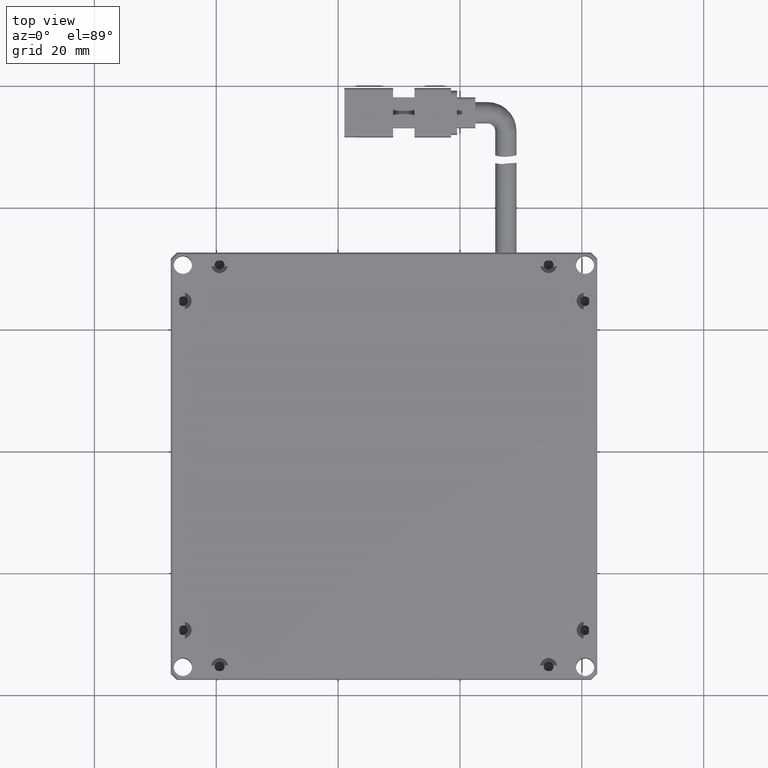
[diagram: clean part render]
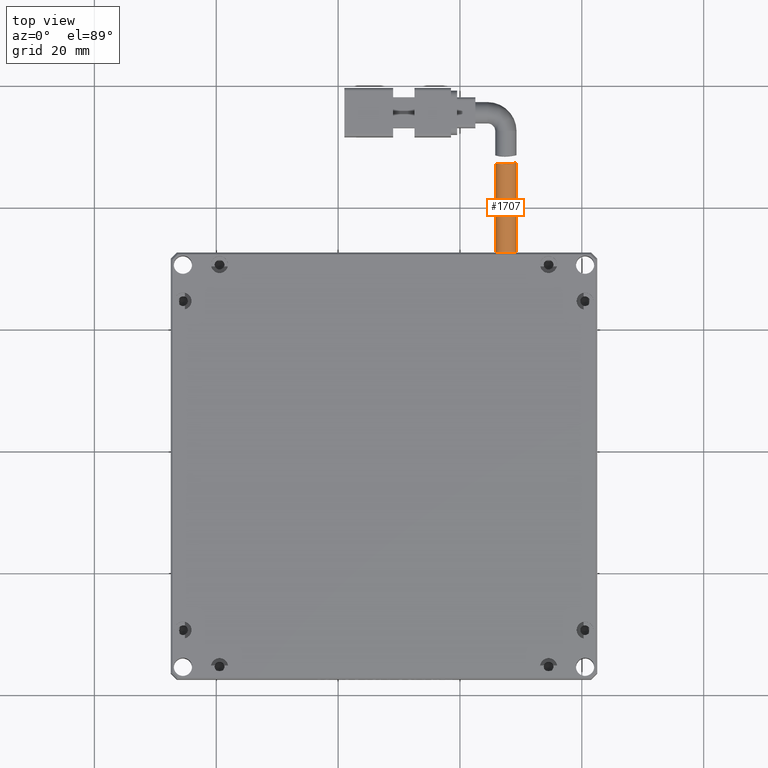
[diagram: same view with one face highlighted and labeled with its STEP entity id]
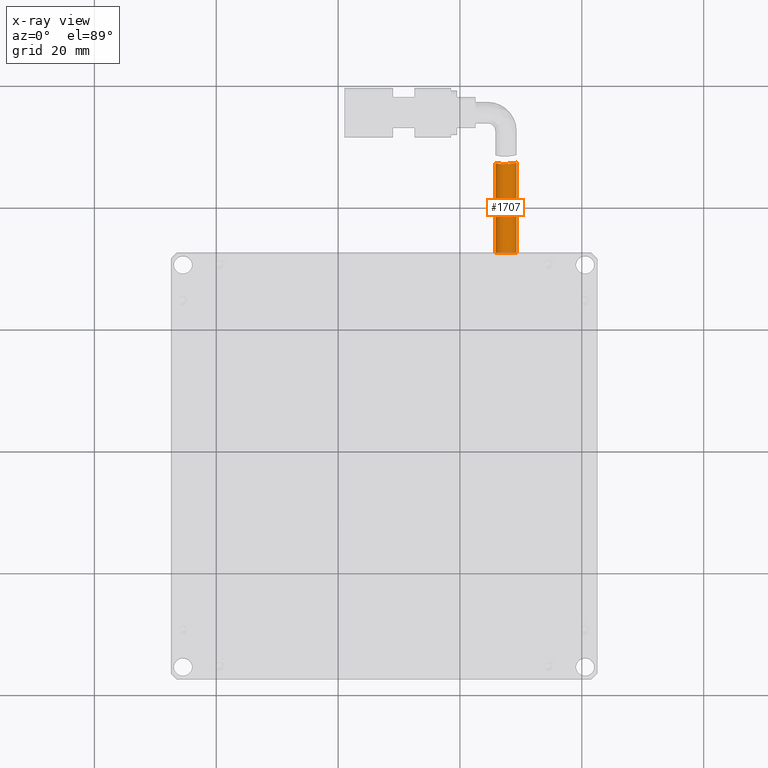
[diagram: x-ray of the same camera — body ghosted, the highlighted face saturated]
A machine part, top view. The second image highlights one B-rep face of the part: STEP entity #1707.
The next image is the same camera in x-ray: the body ghosted, the highlighted face saturated — about 0% of this face is hidden behind the body in this view.
In plain terms, the highlighted cylindrical surface (edge-blend (fillet) strip) has radius 1.75 mm, axis along (0, -1, 0).
Its self-contained STEP definition (entity closure, byte-faithful):
#109 = CARTESIAN_POINT ( 'NONE',  ( 9.227533800888309700, 87.30549672430603900, 2.454400641859419500 ) ) ;
#160 = CARTESIAN_POINT ( 'NONE',  ( 6.970444231491749900, 87.08728371330994400, 3.660870664720755400 ) ) ;
#255 = EDGE_CURVE ( 'NONE', #11679, #11980, #3483, .T. ) ;
#522 = ORIENTED_EDGE ( 'NONE', *, *, #255, .T. ) ;
#1529 = CARTESIAN_POINT ( 'NONE',  ( 9.105568568188719100, 87.28170708176979500, 2.777736136175874100 ) ) ;
#1587 = CARTESIAN_POINT ( 'NONE',  ( 6.458566352028462600, 87.13174397815304000, 3.399748863431741000 ) ) ;
#1707 = ADVANCED_FACE ( 'NONE', ( #6212 ), #12284, .T. ) ;
#2960 = VERTEX_POINT ( 'NONE', #10896 ) ;
#2972 = CARTESIAN_POINT ( 'NONE',  ( 8.924570730984690700, 87.24820439075556100, 3.068188415526130500 ) ) ;
#2975 = ORIENTED_EDGE ( 'NONE', *, *, #14406, .T. ) ;
#3037 = CARTESIAN_POINT ( 'NONE',  ( 6.143040684642115500, 87.18863472532295600, 3.068417009494728700 ) ) ;
#3483 = LINE ( 'NONE', #6894, #6827 ) ;
#4404 = CARTESIAN_POINT ( 'NONE',  ( 8.609378574019517700, 87.19485770877288600, 3.398983333046945000 ) ) ;
#4468 = CARTESIAN_POINT ( 'NONE',  ( 5.961584681775503800, 87.23053018535276200, 2.777188015046553100 ) ) ;
#5870 = CARTESIAN_POINT ( 'NONE',  ( 7.994962853599083100, 87.11642060236629000, 3.703361838500306600 ) ) ;
#5935 = CARTESIAN_POINT ( 'NONE',  ( 5.783692893401002300, 87.27963314474408200, 2.232161965900025400 ) ) ;
#6212 = FACE_OUTER_BOUND ( 'NONE', #15801, .T. ) ;
#6277 = LINE ( 'NONE', #6308, #17209 ) ;
#6308 = CARTESIAN_POINT ( 'NONE',  ( 9.283692893400999700, 92.53591370558376600, 1.999999999999999600 ) ) ;
#6827 = VECTOR ( 'NONE', #7077, 1000.000000000000000 ) ;
#6894 = CARTESIAN_POINT ( 'NONE',  ( 5.783692893401000600, 92.53591370558376600, 1.999999999999999600 ) ) ;
#6998 = ORIENTED_EDGE ( 'NONE', *, *, #14162, .T. ) ;
#7077 = DIRECTION ( 'NONE',  ( 0.0000000000000000000, -1.000000000000000000, 0.0000000000000000000 ) ) ;
#7276 = CARTESIAN_POINT ( 'NONE',  ( 7.421400568359374000, 87.08306173962961300, 3.750139874401407200 ) ) ;
#7750 = DIRECTION ( 'NONE',  ( 0.0000000000000000000, -1.000000000000000000, 0.0000000000000000000 ) ) ;
#8149 = DIRECTION ( 'NONE',  ( -0.0000000000000000000, 1.000000000000000000, -0.0000000000000000000 ) ) ;
#8648 = CARTESIAN_POINT ( 'NONE',  ( 9.272263341098572200, 87.31443533883145800, 2.230108151946735600 ) ) ;
#8711 = CARTESIAN_POINT ( 'NONE',  ( 7.079876373890421300, 87.08334259466362000, 3.694023032864308200 ) ) ;
#10111 = CARTESIAN_POINT ( 'NONE',  ( 9.193664800917581200, 87.29876349347732400, 2.565826740936555600 ) ) ;
#10171 = CARTESIAN_POINT ( 'NONE',  ( 6.651508948928984900, 87.10735056414904400, 3.528794678302347600 ) ) ;
#10522 = DIRECTION ( 'NONE',  ( 0.0000000000000000000, -1.000000000000000000, 0.0000000000000000000 ) ) ;
#10586 = CARTESIAN_POINT ( 'NONE',  ( 7.533692893401000600, 92.53591370558376600, 1.999999999999999600 ) ) ;
#10780 = AXIS2_PLACEMENT_3D ( 'NONE', #16664, #8149, #18114 ) ;
#10896 = CARTESIAN_POINT ( 'NONE',  ( 9.283692893400999700, 72.53591370558376600, 1.999999999999999600 ) ) ;
#11539 = CARTESIAN_POINT ( 'NONE',  ( 9.283692893401003200, 87.31675363808103900, 1.999999999999999600 ) ) ;
#11601 = CARTESIAN_POINT ( 'NONE',  ( 9.051711307917893000, 87.27145208878779700, 2.878172957527923300 ) ) ;
#11652 = CARTESIAN_POINT ( 'NONE',  ( 6.215091311080885600, 87.17399201523765800, 3.156271316457956600 ) ) ;
#11679 = VERTEX_POINT ( 'NONE', #17495 ) ;
#11980 = VERTEX_POINT ( 'NONE', #16983 ) ;
#12207 = DIRECTION ( 'NONE',  ( -1.000000000000000000, 0.0000000000000000000, 0.0000000000000000000 ) ) ;
#12284 = CYLINDRICAL_SURFACE ( 'NONE', #13026, 1.749999999999999800 ) ;
#12438 = B_SPLINE_CURVE_WITH_KNOTS ( 'NONE', 3,
 ( #11539, #15754, #8648, #109, #10111, #1529, #11601, #2972, #13003, #4404, #14438, #5870, #15807, #7276, #17249, #8711, #160, #10171, #1587, #11652, #3037, #13056, #4468, #14487, #5935, #15870 ),
 .UNSPECIFIED., .F., .F.,
 ( 4, 2, 2, 2, 2, 2, 2, 2, 2, 2, 2, 2, 4 ),
 ( 2.110382192020081100E-017, 0.0003431607499797086700, 0.0006863214999593963000, 0.001029482249939083700, 0.001372642999918771400, 0.002058964499878150500, 0.002745285999837529700, 0.003088446749817217800, 0.003431607499796906300, 0.004117928999756283700, 0.004461089749735972600, 0.004804250499715661600, 0.005490571999675036800 ),
 .UNSPECIFIED. ) ;
#12442 = CARTESIAN_POINT ( 'NONE',  ( 9.283692893401003200, 87.31675363808103900, 1.999999999999999600 ) ) ;
#12964 = VERTEX_POINT ( 'NONE', #12442 ) ;
#13003 = CARTESIAN_POINT ( 'NONE',  ( 8.850826751519765200, 87.23514335908906500, 3.157841488376057700 ) ) ;
#13026 = AXIS2_PLACEMENT_3D ( 'NONE', #10586, #10522, #12207 ) ;
#13056 = CARTESIAN_POINT ( 'NONE',  ( 6.016479005774193900, 87.21684510767210000, 2.879483081756534900 ) ) ;
#13469 = EDGE_CURVE ( 'NONE', #12964, #2960, #6277, .T. ) ;
#14162 = EDGE_CURVE ( 'NONE', #11980, #2960, #14940, .T. ) ;
#14406 = EDGE_CURVE ( 'NONE', #12964, #11679, #12438, .T. ) ;
#14438 = CARTESIAN_POINT ( 'NONE',  ( 8.414976011389661900, 87.16545615888122700, 3.528905358414465200 ) ) ;
#14487 = CARTESIAN_POINT ( 'NONE',  ( 5.830061857775279000, 87.26510513697857600, 2.460785257606989100 ) ) ;
#14940 = CIRCLE ( 'NONE', #10780, 1.749999999999999800 ) ;
#15291 = ORIENTED_EDGE ( 'NONE', *, *, #13469, .F. ) ;
#15754 = CARTESIAN_POINT ( 'NONE',  ( 9.283692893401001500, 87.31675363808106700, 2.116052899521373200 ) ) ;
#15801 = EDGE_LOOP ( 'NONE', ( #15291, #2975, #522, #6998 ) ) ;
#15807 = CARTESIAN_POINT ( 'NONE',  ( 7.764754812016306600, 87.09653347672633600, 3.749716255481323500 ) ) ;
#15870 = CARTESIAN_POINT ( 'NONE',  ( 5.783692893401001500, 87.27963314474406800, 1.999999999999999600 ) ) ;
#16664 = CARTESIAN_POINT ( 'NONE',  ( 7.533692893401000600, 72.53591370558376600, 1.999999999999999600 ) ) ;
#16983 = CARTESIAN_POINT ( 'NONE',  ( 5.783692893401000600, 72.53591370558376600, 1.999999999999999600 ) ) ;
#17209 = VECTOR ( 'NONE', #7750, 1000.000000000000000 ) ;
#17249 = CARTESIAN_POINT ( 'NONE',  ( 7.304934755872634100, 87.08118872053692900, 3.738773471091055600 ) ) ;
#17495 = CARTESIAN_POINT ( 'NONE',  ( 5.783692893401001500, 87.27963314474406800, 1.999999999999999600 ) ) ;
#18114 = DIRECTION ( 'NONE',  ( -1.000000000000000000, 0.0000000000000000000, 0.0000000000000000000 ) ) ;